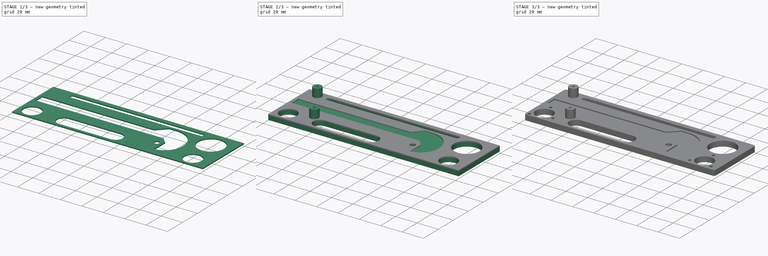
[diagram: build sequence overview — one tinted view per stage of 3, left to right]
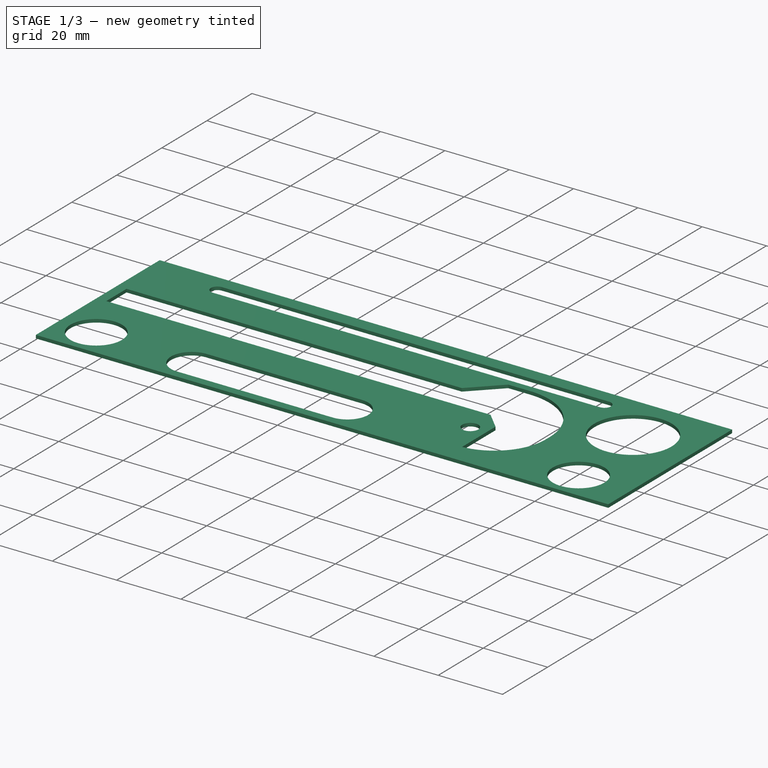
[diagram: stage 1 of 3 — iso view after this stage's code; geometry added in this stage tinted green]
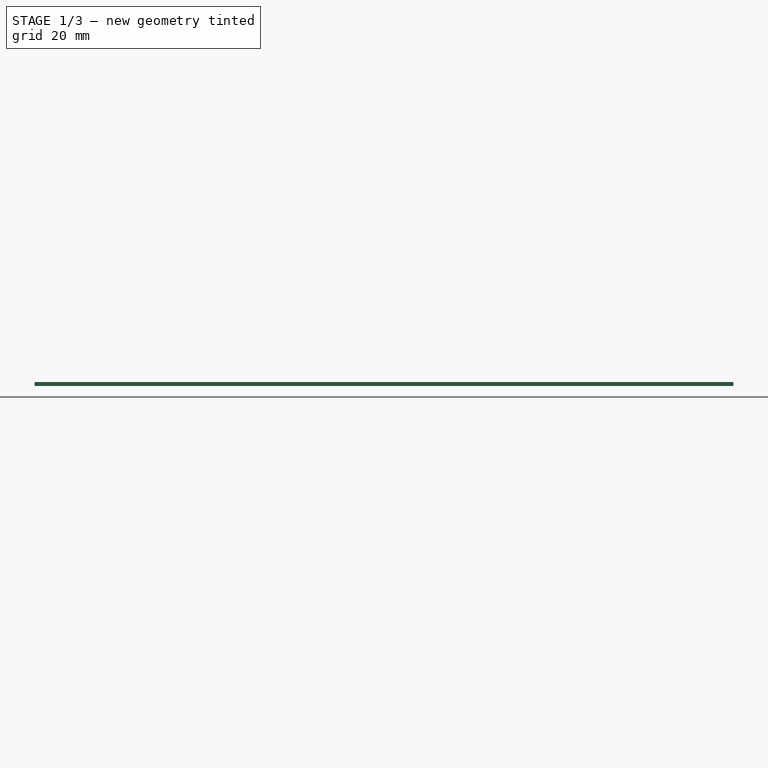
[diagram: stage 1 of 3 — front view after this stage's code; geometry added in this stage tinted green]
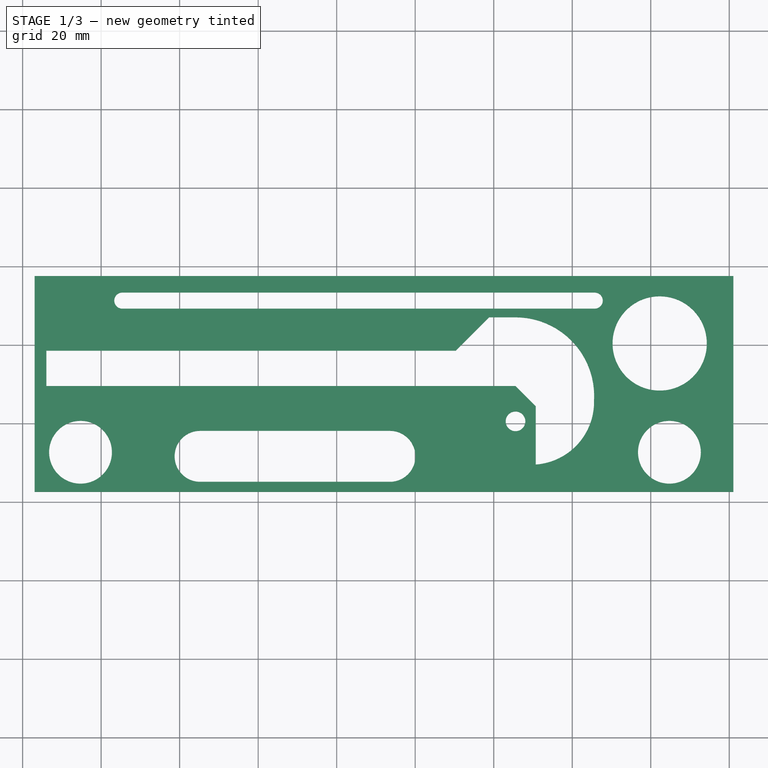
[diagram: stage 1 of 3 — top view after this stage's code; geometry added in this stage tinted green]
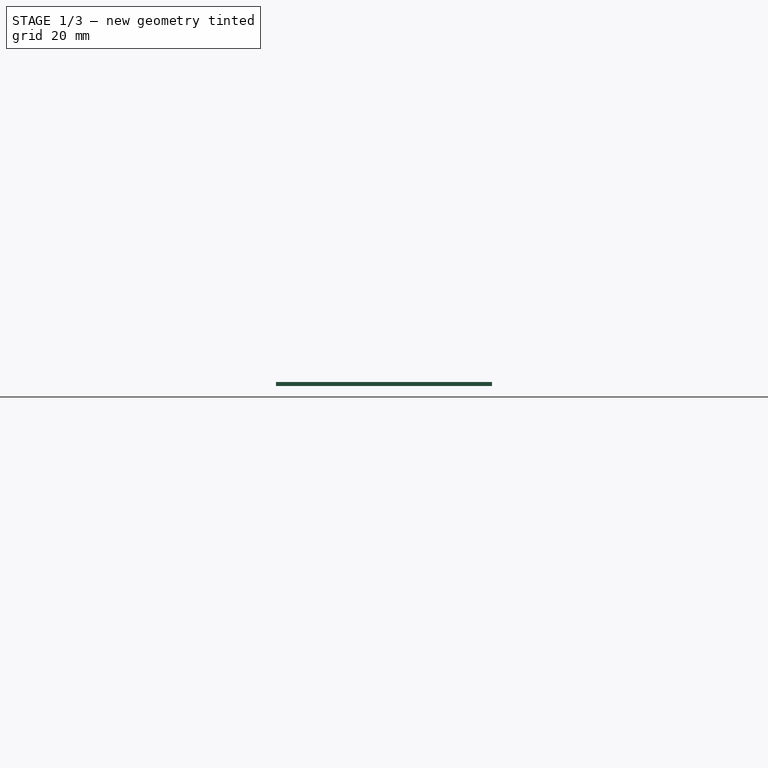
[diagram: stage 1 of 3 — right view after this stage's code; geometry added in this stage tinted green]
FCSTD DOCUMENT  (FreeCAD 0.19R24276 (Git))
Label: Paper_knife_V3
License: All rights reserved
LicenseURL: http://en.wikipedia.org/wiki/All_rights_reserved
objects: Sketcher::SketchObject×6, PartDesign::Pad×3, PartDesign::Pocket×3, PartDesign::Fillet×1, PartDesign::Body×1
note: 21 computed .brp shape members not serialized (recipe doc carries the construction recipe); baked Part::Feature solids carry a one-line shape summary decoded from their .brp

FEATURE [Sketcher::SketchObject] Sketch001  label="Sketch_paper_knife_bottom"
  FullyConstrained = false
  MapMode = 5
  Support = -> [XY_Plane]
  sketch-geometry (63):
    g0: LineSegment StartX=-234.473 StartY=320.288 StartZ=0 EndX=-134.473 EndY=320.288 EndZ=0
    g1: LineSegment StartX=-224.473 StartY=338.288 StartZ=0 EndX=-124.473 EndY=338.288 EndZ=0
    g2: LineSegment StartX=-134.473 StartY=320.288 StartZ=0 EndX=-124.473 EndY=338.288 EndZ=0
    g3: LineSegment StartX=-234.473 StartY=320.288 StartZ=0 EndX=-224.473 EndY=338.288 EndZ=0
    g4: Circle CenterX=-140.473 CenterY=329.288 CenterZ=0 NormalX=0 NormalY=0 NormalZ=1 AngleXU=0 Radius=2.3784
    g5: LineSegment StartX=-233.473 StartY=322.088 StartZ=0 EndX=-133.473 EndY=322.088 EndZ=0
    g6: Circle CenterX=5.54995 CenterY=200.561 CenterZ=0 NormalX=0 NormalY=0 NormalZ=1 AngleXU=0 Radius=2.5
    g7: ArcOfCircle CenterX=9.55773 CenterY=205.53 CenterZ=0 NormalX=0 NormalY=0 NormalZ=1 AngleXU=0 Radius=16 StartAngle=4.23032 EndAngle=6.31437
    g8: ArcOfCircle CenterX=-92.45 CenterY=207.352 CenterZ=0 NormalX=0 NormalY=0 NormalZ=1 AngleXU=0 Radius=8 StartAngle=3.86433 EndAngle=5.56045
    g9: LineSegment StartX=-124.45 StartY=213.061 StartZ=0 EndX=-116.95 EndY=227.061 EndZ=0
    g10: LineSegment StartX=-124.45 StartY=213.061 StartZ=0 EndX=-120.45 EndY=202.061 EndZ=0
    g11: ArcOfCircle CenterX=-39.4857 CenterY=116.98 CenterZ=0 NormalX=0 NormalY=0 NormalZ=1 AngleXU=0 Radius=85.2296 StartAngle=1.06055 EndAngle=1.51168
    g12: LineSegment StartX=-34.45 StartY=202.061 StartZ=0 EndX=-86.45 EndY=202.061 EndZ=0
    g13: LineSegment StartX=-98.45 StartY=202.061 StartZ=0 EndX=-120.45 EndY=202.061 EndZ=0
    g14: ArcOfCircle CenterX=-113.45 CenterY=213.061 CenterZ=0 NormalX=0 NormalY=0 NormalZ=1 AngleXU=0 Radius=2.5 StartAngle=1.5708 EndAngle=4.71239
    g15: ArcOfCircle CenterX=-23.45 CenterY=213.061 CenterZ=0 NormalX=0 NormalY=0 NormalZ=1 AngleXU=0 Radius=2.5 StartAngle=4.71239 EndAngle=7.85398
    g16: LineSegment StartX=-113.45 StartY=210.561 StartZ=0 EndX=-23.45 EndY=210.561 EndZ=0
    g17: LineSegment StartX=-113.45 StartY=215.561 StartZ=0 EndX=-23.45 EndY=215.561 EndZ=0
    g18: LineSegment StartX=-27.3628 StartY=293.719 StartZ=0 EndX=-27.3628 EndY=353.575 EndZ=0
    g19: LineSegment StartX=-207.45 StartY=204.061 StartZ=0 EndX=-107.45 EndY=204.061 EndZ=0
    g20: LineSegment StartX=-197.45 StartY=222.061 StartZ=0 EndX=-97.45 EndY=222.061 EndZ=0
    g21: LineSegment StartX=-107.45 StartY=204.061 StartZ=0 EndX=-97.45 EndY=222.061 EndZ=0
    g22: LineSegment StartX=-207.45 StartY=204.061 StartZ=0 EndX=-197.45 EndY=222.061 EndZ=0
    g23: Circle CenterX=-113.45 CenterY=213.061 CenterZ=0 NormalX=0 NormalY=0 NormalZ=1 AngleXU=0 Radius=2.3784
    g24: LineSegment StartX=-206.45 StartY=205.861 StartZ=0 EndX=-106.45 EndY=205.861 EndZ=0
    g25: LineSegment StartX=-98.45 StartY=202.061 StartZ=0 EndX=-86.45 EndY=202.061 EndZ=0
    g26: ArcOfCircle CenterX=5.54995 CenterY=207.036 CenterZ=0 NormalX=0 NormalY=0 NormalZ=1 AngleXU=0 Radius=20.0253 StartAngle=6.2329 EndAngle=7.85398
    g27: LineSegment StartX=5.54995 StartY=227.061 StartZ=0 EndX=-116.95 EndY=227.061 EndZ=0
    g28: LineSegment StartX=5.54995 StartY=200.561 StartZ=0 EndX=5.54995 EndY=227.061 EndZ=0
    g29: LineSegment StartX=5.54995 StartY=200.561 StartZ=0 EndX=5.54995 EndY=189.561 EndZ=0
    g30: LineSegment StartX=5.54995 StartY=200.561 StartZ=0 EndX=10.55 EndY=189.561 EndZ=0
    g31: LineSegment StartX=10.55 StartY=189.561 StartZ=0 EndX=5.54995 EndY=189.561 EndZ=0
    g32: LineSegment StartX=-123.177 StartY=209.561 StartZ=0 EndX=-9.61802 EndY=209.561 EndZ=0
    g33: LineSegment StartX=-121.504 StartY=218.561 StartZ=0 EndX=-9.69446 EndY=218.561 EndZ=0
    g34: LineSegment StartX=-9.69446 StartY=227.061 StartZ=0 EndX=-9.69446 EndY=218.561 EndZ=0
    g35: LineSegment StartX=-116.95 StartY=237.584 StartZ=0 EndX=61.05 EndY=237.584 EndZ=0
    g36: LineSegment StartX=61.05 StartY=237.584 StartZ=0 EndX=61.05 EndY=182.584 EndZ=0
    g37: LineSegment StartX=61.05 StartY=182.584 StartZ=0 EndX=-116.95 EndY=182.584 EndZ=0
    g38: LineSegment StartX=-116.95 StartY=182.584 StartZ=0 EndX=-116.95 EndY=237.584 EndZ=0
    g39: LineSegment StartX=-105.249 StartY=192.692 StartZ=0 EndX=44.7508 EndY=192.692 EndZ=0
    g40: Circle CenterX=-105.249 CenterY=192.692 CenterZ=0 NormalX=0 NormalY=0 NormalZ=1 AngleXU=0 Radius=8
    g41: Circle CenterX=44.7508 CenterY=192.692 CenterZ=0 NormalX=0 NormalY=0 NormalZ=1 AngleXU=0 Radius=8
    g42: LineSegment StartX=-9.69446 StartY=227.061 StartZ=0 EndX=5.54995 EndY=227.061 EndZ=0
    g43: LineSegment StartX=-9.69446 StartY=227.061 StartZ=0 EndX=5.54995 EndY=227.061 EndZ=0
    g44: LineSegment StartX=-113.95 StartY=218.561 StartZ=0 EndX=-9.69446 EndY=218.561 EndZ=0
    g45: LineSegment StartX=-113.95 StartY=209.561 StartZ=0 EndX=-9.61802 EndY=209.561 EndZ=0
    g46: LineSegment StartX=5.54995 StartY=200.561 StartZ=0 EndX=5.54995 EndY=207.036 EndZ=0
    g47: LineSegment StartX=-9.61802 StartY=209.561 StartZ=0 EndX=5.54995 EndY=209.561 EndZ=0
    g48: LineSegment StartX=5.54995 StartY=209.561 StartZ=0 EndX=10.6979 EndY=204.413 EndZ=0
    g49: ArcOfCircle CenterX=9.56276 CenterY=205.516 CenterZ=0 NormalX=0 NormalY=0 NormalZ=1 AngleXU=0 Radius=15.9954 StartAngle=4.78341 EndAngle=6.31527
    g50: LineSegment StartX=-9.69446 StartY=218.561 StartZ=0 EndX=-1.19441 EndY=227.061 EndZ=0
    g51: LineSegment StartX=-1.19441 StartY=227.061 StartZ=0 EndX=5.54995 EndY=227.061 EndZ=0
    g52: LineSegment StartX=-113.95 StartY=218.561 StartZ=0 EndX=-113.95 EndY=209.561 EndZ=0
    g53: LineSegment StartX=10.6979 StartY=189.561 StartZ=0 EndX=10.6979 EndY=204.413 EndZ=0
    g54: ArcOfCircle CenterX=-74.7934 CenterY=191.651 CenterZ=0 NormalX=0 NormalY=0 NormalZ=1 AngleXU=0 Radius=6.48941 StartAngle=1.5708 EndAngle=4.71239
    g55: ArcOfCircle CenterX=-26.4409 CenterY=191.651 CenterZ=0 NormalX=0 NormalY=0 NormalZ=1 AngleXU=0 Radius=6.48941 StartAngle=4.71239 EndAngle=7.85398
    g56: LineSegment StartX=-74.7934 StartY=185.161 StartZ=0 EndX=-26.4409 EndY=185.161 EndZ=0
    g57: LineSegment StartX=-74.7934 StartY=198.14 StartZ=0 EndX=-26.4409 EndY=198.14 EndZ=0
    g58: Circle CenterX=42.2705 CenterY=220.408 CenterZ=0 NormalX=0 NormalY=0 NormalZ=1 AngleXU=0 Radius=12.0041
    g59: ArcOfCircle CenterX=-94.6128 CenterY=231.321 CenterZ=0 NormalX=0 NormalY=0 NormalZ=1 AngleXU=0 Radius=2.04328 StartAngle=1.5708 EndAngle=4.71239
    g60: ArcOfCircle CenterX=25.7289 CenterY=231.321 CenterZ=0 NormalX=0 NormalY=0 NormalZ=1 AngleXU=0 Radius=2.04328 StartAngle=4.71239 EndAngle=7.85398
    g61: LineSegment StartX=-94.6128 StartY=229.278 StartZ=0 EndX=25.7289 EndY=229.278 EndZ=0
    g62: LineSegment StartX=-94.6128 StartY=233.364 StartZ=0 EndX=25.7289 EndY=233.364 EndZ=0
  constraints (152):
    c: Horizontal(g0)
    c: Horizontal(g1)
    c: Coincident(g2,g0)
    c: Coincident(g2,g1)
    c: Coincident(g3,g0)
    c: Coincident(g1,g3)
    c: Parallel(g3,g2)
    c: DistanceY(g0,g1) = 18
    c: DistanceX(g0,g0) = 100
    c: DistanceX(g0,g1) = 110
    c: DistanceX(g4,g0) = 6
    c: DistanceY(g0,g4) = 9
    c: PointOnObject(g5,g3)
    c: PointOnObject(g5,g2)
    c: Horizontal(g5)
    c: DistanceY(g0,g5) = 1.8
    c: Diameter(g6) = 5
    c: DistanceX(g8,g6) = 98
    c: Diameter(g8) = 16
    c: DistanceX(g8,g8) = 12
    c: Coincident(g10,g9)
    c: DistanceX(g10,g6) = 126
    c: DistanceY(g10,g9) = 11
    c: DistanceY(g10,g9) = 25
    c: DistanceX(g11,g6) = 40
    c: Coincident(g7,g11)
    c: Coincident(g12,g11)
    c: Coincident(g12,g8)
    c: Horizontal(g12)
    c: Coincident(g13,g8)
    c: Coincident(g13,g10)
    c: Horizontal(g13)
    c: DistanceX(g9,g10) = 4
    c: DistanceX(g9,g9) = 7.5
    c: Diameter(g7) = 32
    c: DistanceX(g6,g7) = 20
    c: Tangent(g14,g17) = 1.5708
    c: Tangent(g14,g16) = -1.5708
    c: Tangent(g16,g15) = -1.5708
    c: Tangent(g17,g15) = 1.5708
    c: Horizontal(g16)
    c: Equal(g14,g15)
    c: Diameter(g15) = 5
    c: Vertical(g18)
    c: Horizontal(g19)
    c: Horizontal(g20)
    c: Coincident(g21,g19)
    c: Coincident(g21,g20)
    c: Coincident(g22,g19)
    c: Coincident(g20,g22)
    c: Parallel(g22,g21)
    c: DistanceY(g19,g20) = 18
    c: Equal(g0,g19) = 100
    c: DistanceX(g19,g20) = 110
    c: DistanceX(g23,g19) = 6
    c: DistanceY(g19,g23) = 9
    c: PointOnObject(g24,g22)
    c: PointOnObject(g24,g21)
    c: Horizontal(g24)
    c: DistanceY(g19,g24) = 1.8
    c: DistanceY(g10,g14) = 11
    c: Coincident(g23,g14)
    c: DistanceX(g10,g14) = 7
    c: DistanceX(g10,g15) = 97
    c: DistanceX(g7,g6) = 3.41
    c: DistanceY(g6,g11) = 1.5
    c: Coincident(g25,g8)
    c: Horizontal(g25)
    c: Coincident(g8,g25)
    c: Coincident(g26,g7)
    c: Coincident(g27,g26)
    c: Coincident(g27,g9)
    c: Horizontal(g27)
    c: Coincident(g28,g6)
    c: Coincident(g28,g26)
    c: Vertical(g28)
    c: Coincident(g29,g6)
    c: Vertical(g29)
    c: DistanceY(g29,g29) = 11
    c: Coincident(g30,g6)
    c: PointOnObject(g30,g7)
    c: Coincident(g31,g30)
    c: Coincident(g31,g29)
    c: Horizontal(g31)
    c: DistanceX(g6,g30) = 5
    c: Horizontal(g32)
    c: Horizontal(g33)
    c: Vertical(g34)
    c: DistanceY(g11,g32) = 7.5
    c: DistanceY(g11,g33) = 16.5
    c: Coincident(g34,g33)
    c: PointOnObject(g34,g27)
    c: PointOnObject(g33,g9)
    c: PointOnObject(g32,g10)
    c: Coincident(g35,g36)
    c: Coincident(g36,g37)
    c: Coincident(g37,g38)
    c: Coincident(g38,g35)
    c: Horizontal(g35)
    c: Horizontal(g37)
    c: Vertical(g36)
    c: Vertical(g38)
    c: Horizontal(g39)
    c: Coincident(g40,g39)
    c: Coincident(g41,g39)
    c: Equal(g41,g40)
    c: Diameter(g41) = 16
    c: DistanceX(g39,g39) = 150
    c: Vertical(g9,g35)
    c: DistanceX(g37,g37) = 178
    c: DistanceY(g36,g36) = 55
    c: Coincident(g43,g34)
    c: Coincident(g26,g43)
    c: Coincident(g42,g26)
    c: Coincident(g34,g42)
    c: Coincident(g44,g34)
    c: Coincident(g46,g6)
    c: Coincident(g46,g26)
    c: Vertical(g46)
    c: Horizontal(g47)
    c: Coincident(g48,g47)
    c: Vertical(g6,g47)
    c: Angle(g47,g48) = 2.35619
    c: Coincident(g49,g26)
    c: PointOnObject(g49,g31)
    c: Coincident(g50,g34)
    c: PointOnObject(g50,g43)
    c: Angle(g50,g44) = 2.35619
    c: Coincident(g51,g50)
    c: Vertical(g52)
    c: Coincident(g45,g52)
    c: Coincident(g52,g44)
    c: Horizontal(g32,g45)
    c: DistanceX(g9,g44) = 3
    c: Coincident(g53,g49)
    c: Coincident(g53,g48)
    c: Vertical(g53)
    c: Coincident(g51,g26)
    c: Tangent(g54,g57) = 1.5708
    c: Tangent(g54,g56) = -1.5708
    c: Tangent(g56,g55) = -1.5708
    c: Tangent(g57,g55) = 1.5708
    c: Horizontal(g56)
    c: Equal(g54,g55)
    c: Tangent(g59,g62) = 1.5708
    c: Tangent(g59,g61) = -1.5708
    c: Tangent(g61,g60) = -1.5708
    c: Tangent(g62,g60) = 1.5708
    c: Horizontal(g61)
    c: Equal(g59,g60)
    c: Horizontal(g45)
    c: Coincident(g47,g45)
FEATURE [PartDesign::Pad] Pad  label="Pad_1.0"
  Direction = (1,1,1)
  Length = 1
  Length2 = 100
  Profile = -> Sketch001
  Type = 0
FEATURE [Sketcher::SketchObject] Sketch003  label="Sketch003_d8_2stolba"
  FullyConstrained = false
  MapMode = 5
  Placement = pos=(0,0,1) rot=(0,0,1;0rad)
  Support = -> [Pad]
  sketch-geometry (6):
    g0: Circle CenterX=-84.9433 CenterY=197.501 CenterZ=0 NormalX=0 NormalY=0 NormalZ=1 AngleXU=0 Radius=4
    g1: Circle CenterX=-104.954 CenterY=231.542 CenterZ=0 NormalX=0 NormalY=0 NormalZ=1 AngleXU=0 Radius=4
    g2: LineSegment StartX=-84.9433 StartY=197.501 StartZ=0 EndX=-84.9433 EndY=198.501 EndZ=0
    g3: Circle CenterX=-84.9433 CenterY=198.501 CenterZ=0 NormalX=0 NormalY=0 NormalZ=1 AngleXU=0 Radius=4
    g4: LineSegment StartX=-104.954 StartY=231.542 StartZ=0 EndX=-104.954 EndY=231.042 EndZ=0
    g5: Circle CenterX=-104.954 CenterY=231.042 CenterZ=0 NormalX=0 NormalY=0 NormalZ=1 AngleXU=0 Radius=4
  constraints (12):
    c: Diameter(g0) = 8
    c: Equal(g0,g1)
    c: Coincident(g2,g0)
    c: Vertical(g2)
    c: DistanceY(g2,g2) = 1
    c: Coincident(g3,g2)
    c: Diameter(g3) = 8
    c: Coincident(g4,g1)
    c: Vertical(g4)
    c: DistanceY(g4,g4) = 0.5
    c: Coincident(g5,g4)
    c: Equal(g5,g1)
FEATURE [Sketcher::SketchObject] Sketch004
  FullyConstrained = false
  MapMode = 5
  Placement = pos=(0,0,10) rot=(0,0,1;0rad)
  sketch-geometry (2):
    g0: Circle CenterX=-84.9178 CenterY=197.526 CenterZ=0 NormalX=0 NormalY=0 NormalZ=1 AngleXU=0 Radius=1.3
    g1: Circle CenterX=-104.937 CenterY=231.506 CenterZ=0 NormalX=0 NormalY=0 NormalZ=1 AngleXU=0 Radius=1.3
  constraints (2):
    c: Diameter(g0) = 2.6
    c: Diameter(g1) = 2.6
FEATURE [PartDesign::Pocket] Pocket
  BaseFeature = -> Pad
  Length = 9
  Length2 = 100
  Profile = -> Sketch004
  Type = 0
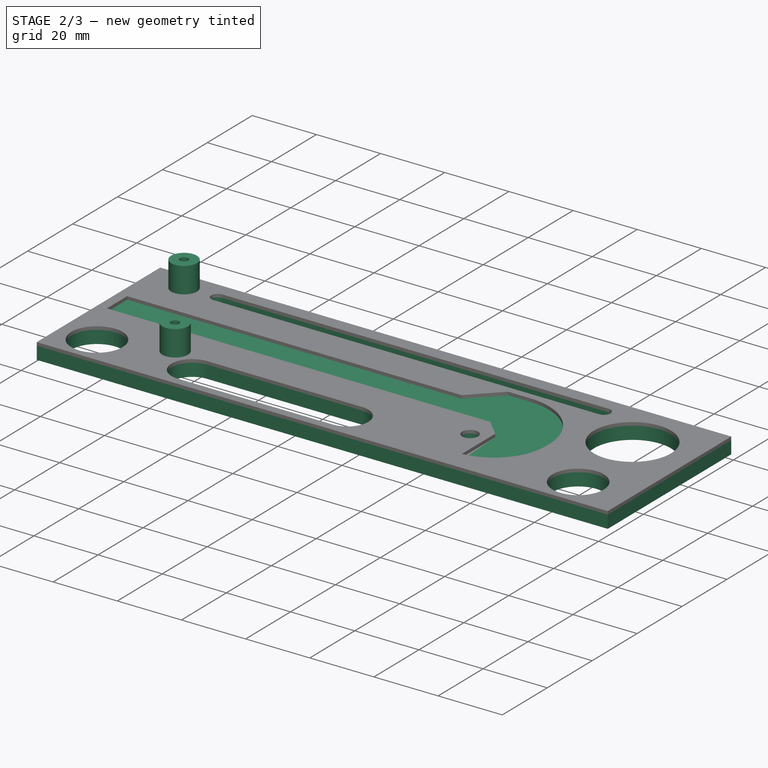
[diagram: stage 2 of 3 — iso view after this stage's code; geometry added in this stage tinted green]
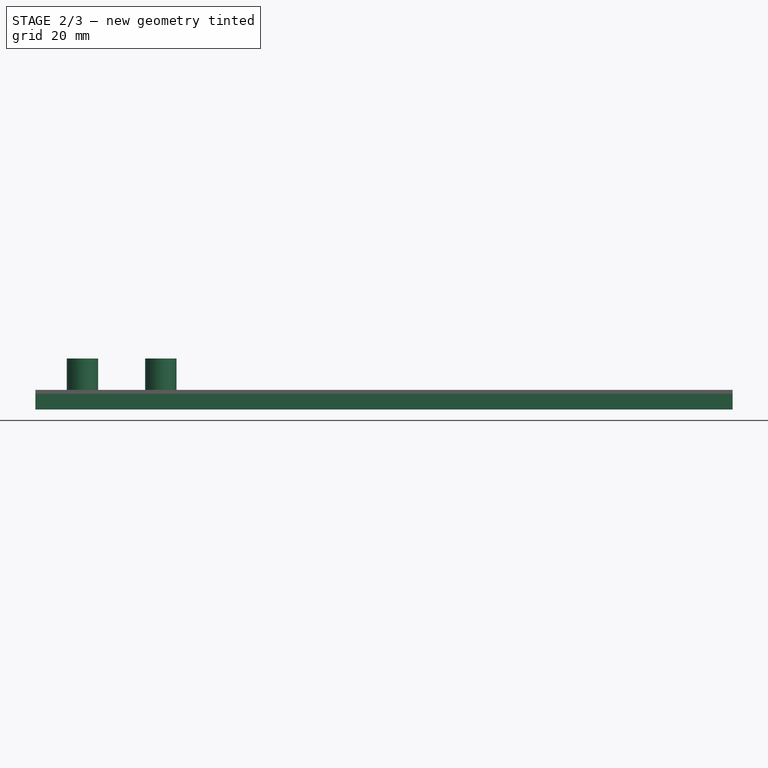
[diagram: stage 2 of 3 — front view after this stage's code; geometry added in this stage tinted green]
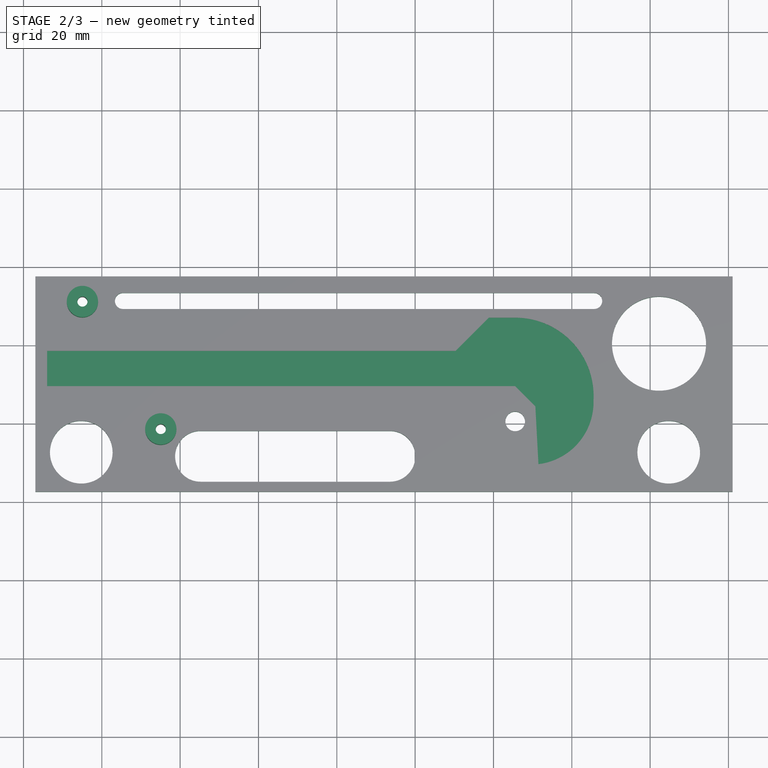
[diagram: stage 2 of 3 — top view after this stage's code; geometry added in this stage tinted green]
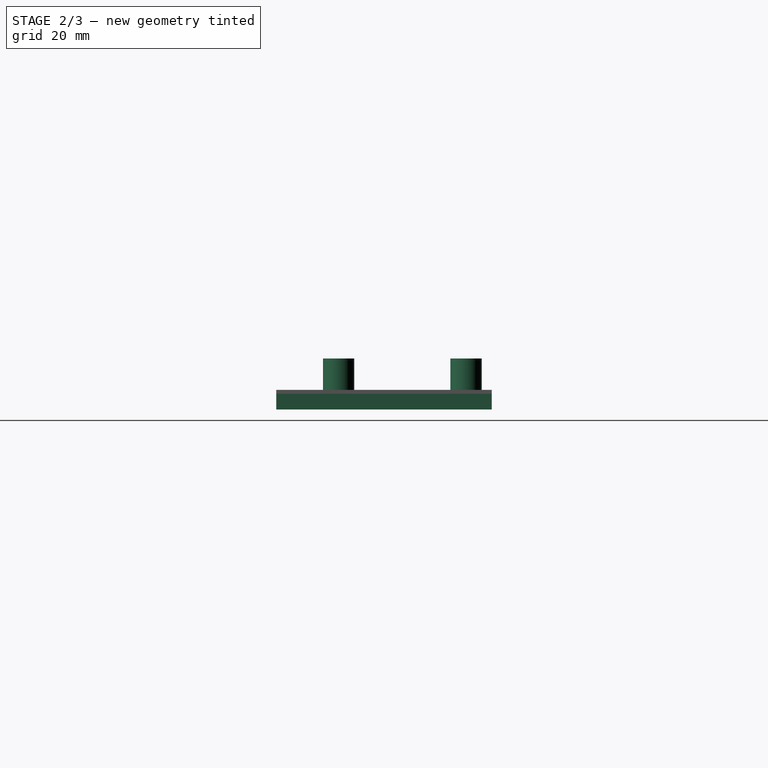
[diagram: stage 2 of 3 — right view after this stage's code; geometry added in this stage tinted green]
FEATURE [PartDesign::Pad] Pad001  label="Pad001_h8"
  BaseFeature = -> Pocket
  Direction = (1,1,1)
  Length = 8
  Length2 = 100
  Profile = -> Sketch003
  Type = 0
FEATURE [Sketcher::SketchObject] Sketch006  label="Sketch_paper_knife_bottom001"
  FullyConstrained = false
  MapMode = 5
  Support = -> [XY_Plane]
  sketch-geometry (63):
    g0: LineSegment StartX=-234.473 StartY=320.288 StartZ=0 EndX=-134.473 EndY=320.288 EndZ=0
    g1: LineSegment StartX=-224.473 StartY=338.288 StartZ=0 EndX=-124.473 EndY=338.288 EndZ=0
    g2: LineSegment StartX=-134.473 StartY=320.288 StartZ=0 EndX=-124.473 EndY=338.288 EndZ=0
    g3: LineSegment StartX=-234.473 StartY=320.288 StartZ=0 EndX=-224.473 EndY=338.288 EndZ=0
    g4: Circle CenterX=-140.473 CenterY=329.288 CenterZ=0 NormalX=0 NormalY=0 NormalZ=1 AngleXU=0 Radius=2.3784
    g5: LineSegment StartX=-233.473 StartY=322.088 StartZ=0 EndX=-133.473 EndY=322.088 EndZ=0
    g6: Circle CenterX=5.54995 CenterY=200.561 CenterZ=0 NormalX=0 NormalY=0 NormalZ=1 AngleXU=0 Radius=2.5
    g7: ArcOfCircle CenterX=9.55773 CenterY=205.53 CenterZ=0 NormalX=0 NormalY=0 NormalZ=1 AngleXU=0 Radius=16 StartAngle=4.23032 EndAngle=6.31437
    g8: ArcOfCircle CenterX=-92.45 CenterY=207.352 CenterZ=0 NormalX=0 NormalY=0 NormalZ=1 AngleXU=0 Radius=8 StartAngle=3.86433 EndAngle=5.56045
    g9: LineSegment StartX=-124.45 StartY=213.061 StartZ=0 EndX=-116.95 EndY=227.061 EndZ=0
    g10: LineSegment StartX=-124.45 StartY=213.061 StartZ=0 EndX=-120.45 EndY=202.061 EndZ=0
    g11: ArcOfCircle CenterX=-39.4857 CenterY=116.98 CenterZ=0 NormalX=0 NormalY=0 NormalZ=1 AngleXU=0 Radius=85.2296 StartAngle=1.06055 EndAngle=1.51168
    g12: LineSegment StartX=-34.45 StartY=202.061 StartZ=0 EndX=-86.45 EndY=202.061 EndZ=0
    g13: LineSegment StartX=-98.45 StartY=202.061 StartZ=0 EndX=-120.45 EndY=202.061 EndZ=0
    g14: ArcOfCircle CenterX=-113.45 CenterY=213.061 CenterZ=0 NormalX=0 NormalY=0 NormalZ=1 AngleXU=0 Radius=2.5 StartAngle=1.5708 EndAngle=4.71239
    g15: ArcOfCircle CenterX=-23.45 CenterY=213.061 CenterZ=0 NormalX=0 NormalY=0 NormalZ=1 AngleXU=0 Radius=2.5 StartAngle=4.71239 EndAngle=7.85398
    g16: LineSegment StartX=-113.45 StartY=210.561 StartZ=0 EndX=-23.45 EndY=210.561 EndZ=0
    g17: LineSegment StartX=-113.45 StartY=215.561 StartZ=0 EndX=-23.45 EndY=215.561 EndZ=0
    g18: LineSegment StartX=-27.3628 StartY=293.719 StartZ=0 EndX=-27.3628 EndY=353.575 EndZ=0
    g19: LineSegment StartX=-207.45 StartY=204.061 StartZ=0 EndX=-107.45 EndY=204.061 EndZ=0
    g20: LineSegment StartX=-197.45 StartY=222.061 StartZ=0 EndX=-97.45 EndY=222.061 EndZ=0
    g21: LineSegment StartX=-107.45 StartY=204.061 StartZ=0 EndX=-97.45 EndY=222.061 EndZ=0
    g22: LineSegment StartX=-207.45 StartY=204.061 StartZ=0 EndX=-197.45 EndY=222.061 EndZ=0
    g23: Circle CenterX=-113.45 CenterY=213.061 CenterZ=0 NormalX=0 NormalY=0 NormalZ=1 AngleXU=0 Radius=2.3784
    g24: LineSegment StartX=-206.45 StartY=205.861 StartZ=0 EndX=-106.45 EndY=205.861 EndZ=0
    g25: LineSegment StartX=-98.45 StartY=202.061 StartZ=0 EndX=-86.45 EndY=202.061 EndZ=0
    g26: ArcOfCircle CenterX=5.54995 CenterY=207.036 CenterZ=0 NormalX=0 NormalY=0 NormalZ=1 AngleXU=0 Radius=20.0253 StartAngle=6.2329 EndAngle=7.85398
    g27: LineSegment StartX=5.54995 StartY=227.061 StartZ=0 EndX=-116.95 EndY=227.061 EndZ=0
    g28: LineSegment StartX=5.54995 StartY=200.561 StartZ=0 EndX=5.54995 EndY=227.061 EndZ=0
    g29: LineSegment StartX=5.54995 StartY=200.561 StartZ=0 EndX=5.54995 EndY=189.561 EndZ=0
    g30: LineSegment StartX=5.54995 StartY=200.561 StartZ=0 EndX=10.55 EndY=189.561 EndZ=0
    g31: LineSegment StartX=10.55 StartY=189.561 StartZ=0 EndX=5.54995 EndY=189.561 EndZ=0
    g32: LineSegment StartX=-123.177 StartY=209.561 StartZ=0 EndX=-9.61802 EndY=209.561 EndZ=0
    g33: LineSegment StartX=-121.504 StartY=218.561 StartZ=0 EndX=-9.69446 EndY=218.561 EndZ=0
    g34: LineSegment StartX=-9.69446 StartY=227.061 StartZ=0 EndX=-9.69446 EndY=218.561 EndZ=0
    g35: LineSegment StartX=-116.95 StartY=237.584 StartZ=0 EndX=61.05 EndY=237.584 EndZ=0
    g36: LineSegment StartX=61.05 StartY=237.584 StartZ=0 EndX=61.05 EndY=182.584 EndZ=0
    g37: LineSegment StartX=61.05 StartY=182.584 StartZ=0 EndX=-116.95 EndY=182.584 EndZ=0
    g38: LineSegment StartX=-116.95 StartY=182.584 StartZ=0 EndX=-116.95 EndY=237.584 EndZ=0
    g39: LineSegment StartX=-105.249 StartY=192.692 StartZ=0 EndX=44.7508 EndY=192.692 EndZ=0
    g40: Circle CenterX=-105.249 CenterY=192.692 CenterZ=0 NormalX=0 NormalY=0 NormalZ=1 AngleXU=0 Radius=8
    g41: Circle CenterX=44.7508 CenterY=192.692 CenterZ=0 NormalX=0 NormalY=0 NormalZ=1 AngleXU=0 Radius=8
    g42: LineSegment StartX=-9.69446 StartY=227.061 StartZ=0 EndX=5.54995 EndY=227.061 EndZ=0
    g43: LineSegment StartX=-9.69446 StartY=227.061 StartZ=0 EndX=5.54995 EndY=227.061 EndZ=0
    g44: LineSegment StartX=-113.95 StartY=218.561 StartZ=0 EndX=-9.69446 EndY=218.561 EndZ=0
    g45: LineSegment StartX=-113.95 StartY=209.561 StartZ=0 EndX=-9.61802 EndY=209.561 EndZ=0
    g46: LineSegment StartX=5.54995 StartY=200.561 StartZ=0 EndX=5.54995 EndY=207.036 EndZ=0
    g47: LineSegment StartX=-9.61802 StartY=209.561 StartZ=0 EndX=5.54995 EndY=209.561 EndZ=0
    g48: LineSegment StartX=5.54995 StartY=209.561 StartZ=0 EndX=10.6979 EndY=204.413 EndZ=0
    g49: ArcOfCircle CenterX=9.56276 CenterY=205.516 CenterZ=0 NormalX=0 NormalY=0 NormalZ=1 AngleXU=0 Radius=15.9954 StartAngle=4.78341 EndAngle=6.31527
    g50: LineSegment StartX=-9.69446 StartY=218.561 StartZ=0 EndX=-1.19441 EndY=227.061 EndZ=0
    g51: LineSegment StartX=-1.19441 StartY=227.061 StartZ=0 EndX=5.54995 EndY=227.061 EndZ=0
    g52: LineSegment StartX=-113.95 StartY=218.561 StartZ=0 EndX=-113.95 EndY=209.561 EndZ=0
    g53: LineSegment StartX=10.6979 StartY=189.561 StartZ=0 EndX=10.6979 EndY=204.413 EndZ=0
    g54: ArcOfCircle CenterX=-74.7934 CenterY=191.651 CenterZ=0 NormalX=0 NormalY=0 NormalZ=1 AngleXU=0 Radius=6.48941 StartAngle=1.5708 EndAngle=4.71239
    g55: ArcOfCircle CenterX=-26.4409 CenterY=191.651 CenterZ=0 NormalX=0 NormalY=0 NormalZ=1 AngleXU=0 Radius=6.48941 StartAngle=4.71239 EndAngle=7.85398
    g56: LineSegment StartX=-74.7934 StartY=185.161 StartZ=0 EndX=-26.4409 EndY=185.161 EndZ=0
    g57: LineSegment StartX=-74.7934 StartY=198.14 StartZ=0 EndX=-26.4409 EndY=198.14 EndZ=0
    g58: Circle CenterX=42.2705 CenterY=220.408 CenterZ=0 NormalX=0 NormalY=0 NormalZ=1 AngleXU=0 Radius=12.0041
    g59: ArcOfCircle CenterX=-94.6128 CenterY=231.321 CenterZ=0 NormalX=0 NormalY=0 NormalZ=1 AngleXU=0 Radius=2.04328 StartAngle=1.5708 EndAngle=4.71239
    g60: ArcOfCircle CenterX=25.7289 CenterY=231.321 CenterZ=0 NormalX=0 NormalY=0 NormalZ=1 AngleXU=0 Radius=2.04328 StartAngle=4.71239 EndAngle=7.85398
    g61: LineSegment StartX=-94.6128 StartY=229.278 StartZ=0 EndX=25.7289 EndY=229.278 EndZ=0
    g62: LineSegment StartX=-94.6128 StartY=233.364 StartZ=0 EndX=25.7289 EndY=233.364 EndZ=0
  constraints (152):
    c: Horizontal(g0)
    c: Horizontal(g1)
    c: Coincident(g2,g0)
    c: Coincident(g2,g1)
    c: Coincident(g3,g0)
    c: Coincident(g1,g3)
    c: Parallel(g3,g2)
    c: DistanceY(g0,g1) = 18
    c: DistanceX(g0,g0) = 100
    c: DistanceX(g0,g1) = 110
    c: DistanceX(g4,g0) = 6
    c: DistanceY(g0,g4) = 9
    c: PointOnObject(g5,g3)
    c: PointOnObject(g5,g2)
    c: Horizontal(g5)
    c: DistanceY(g0,g5) = 1.8
    c: Diameter(g6) = 5
    c: DistanceX(g8,g6) = 98
    c: Diameter(g8) = 16
    c: DistanceX(g8,g8) = 12
    c: Coincident(g10,g9)
    c: DistanceX(g10,g6) = 126
    c: DistanceY(g10,g9) = 11
    c: DistanceY(g10,g9) = 25
    c: DistanceX(g11,g6) = 40
    c: Coincident(g7,g11)
    c: Coincident(g12,g11)
    c: Coincident(g12,g8)
    c: Horizontal(g12)
    c: Coincident(g13,g8)
    c: Coincident(g13,g10)
    c: Horizontal(g13)
    c: DistanceX(g9,g10) = 4
    c: DistanceX(g9,g9) = 7.5
    c: Diameter(g7) = 32
    c: DistanceX(g6,g7) = 20
    c: Tangent(g14,g17) = 1.5708
    c: Tangent(g14,g16) = -1.5708
    c: Tangent(g16,g15) = -1.5708
    c: Tangent(g17,g15) = 1.5708
    c: Horizontal(g16)
    c: Equal(g14,g15)
    c: Diameter(g15) = 5
    c: Vertical(g18)
    c: Horizontal(g19)
    c: Horizontal(g20)
    c: Coincident(g21,g19)
    c: Coincident(g21,g20)
    c: Coincident(g22,g19)
    c: Coincident(g20,g22)
    c: Parallel(g22,g21)
    c: DistanceY(g19,g20) = 18
    c: Equal(g0,g19) = 100
    c: DistanceX(g19,g20) = 110
    c: DistanceX(g23,g19) = 6
    c: DistanceY(g19,g23) = 9
    c: PointOnObject(g24,g22)
    c: PointOnObject(g24,g21)
    c: Horizontal(g24)
    c: DistanceY(g19,g24) = 1.8
    c: DistanceY(g10,g14) = 11
    c: Coincident(g23,g14)
    c: DistanceX(g10,g14) = 7
    c: DistanceX(g10,g15) = 97
    c: DistanceX(g7,g6) = 3.41
    c: DistanceY(g6,g11) = 1.5
    c: Coincident(g25,g8)
    c: Horizontal(g25)
    c: Coincident(g8,g25)
    c: Coincident(g26,g7)
    c: Coincident(g27,g26)
    c: Coincident(g27,g9)
    c: Horizontal(g27)
    c: Coincident(g28,g6)
    c: Coincident(g28,g26)
    c: Vertical(g28)
    c: Coincident(g29,g6)
    c: Vertical(g29)
    c: DistanceY(g29,g29) = 11
    c: Coincident(g30,g6)
    c: PointOnObject(g30,g7)
    c: Coincident(g31,g30)
    c: Coincident(g31,g29)
    c: Horizontal(g31)
    c: DistanceX(g6,g30) = 5
    c: Horizontal(g32)
    c: Horizontal(g33)
    c: Vertical(g34)
    c: DistanceY(g11,g32) = 7.5
    c: DistanceY(g11,g33) = 16.5
    c: Coincident(g34,g33)
    c: PointOnObject(g34,g27)
    c: PointOnObject(g33,g9)
    c: PointOnObject(g32,g10)
    c: Coincident(g35,g36)
    c: Coincident(g36,g37)
    c: Coincident(g37,g38)
    c: Coincident(g38,g35)
    c: Horizontal(g35)
    c: Horizontal(g37)
    c: Vertical(g36)
    c: Vertical(g38)
    c: Horizontal(g39)
    c: Coincident(g40,g39)
    c: Coincident(g41,g39)
    c: Equal(g41,g40)
    c: Diameter(g41) = 16
    c: DistanceX(g39,g39) = 150
    c: Vertical(g9,g35)
    c: DistanceX(g37,g37) = 178
    c: DistanceY(g36,g36) = 55
    c: Coincident(g43,g34)
    c: Coincident(g26,g43)
    c: Coincident(g42,g26)
    c: Coincident(g34,g42)
    c: Coincident(g44,g34)
    c: Coincident(g46,g6)
    c: Coincident(g46,g26)
    c: Vertical(g46)
    c: Horizontal(g47)
    c: Coincident(g48,g47)
    c: Vertical(g6,g47)
    c: Angle(g47,g48) = 2.35619
    c: Coincident(g49,g26)
    c: PointOnObject(g49,g31)
    c: Coincident(g50,g34)
    c: PointOnObject(g50,g43)
    c: Angle(g50,g44) = 2.35619
    c: Coincident(g51,g50)
    c: Vertical(g52)
    c: Coincident(g45,g52)
    c: Coincident(g52,g44)
    c: Horizontal(g32,g45)
    c: DistanceX(g9,g44) = 3
    c: Coincident(g53,g49)
    c: Coincident(g53,g48)
    c: Vertical(g53)
    c: Coincident(g51,g26)
    c: Tangent(g54,g57) = 1.5708
    c: Tangent(g54,g56) = -1.5708
    c: Tangent(g56,g55) = -1.5708
    c: Tangent(g57,g55) = 1.5708
    c: Horizontal(g56)
    c: Equal(g54,g55)
    c: Tangent(g59,g62) = 1.5708
    c: Tangent(g59,g61) = -1.5708
    c: Tangent(g61,g60) = -1.5708
    c: Tangent(g62,g60) = 1.5708
    c: Horizontal(g61)
    c: Equal(g59,g60)
    c: Horizontal(g45)
    c: Coincident(g47,g45)
FEATURE [PartDesign::Pad] Pad002
  BaseFeature = -> Pad001
  Direction = (1,1,1)
  Length = 4
  Length2 = 100
  Profile = -> Sketch006
  Reversed = true
  Type = 0
FEATURE [Sketcher::SketchObject] Sketch
  FullyConstrained = false
  MapMode = 5
  Placement = pos=(0,0,9) rot=(0,0,1;0rad)
  Support = -> [Pad002]
  sketch-geometry (2):
    g0: Circle CenterX=-84.9456 CenterY=198.487 CenterZ=0 NormalX=0 NormalY=0 NormalZ=1 AngleXU=0 Radius=1.3
    g1: Circle CenterX=-104.953 CenterY=231.032 CenterZ=0 NormalX=0 NormalY=0 NormalZ=1 AngleXU=0 Radius=1.3
  constraints (2):
    c: Equal(g1,g0)
    c: Diameter(g1) = 2.6
FEATURE [PartDesign::Pocket] Pocket001
  BaseFeature = -> Pad002
  Length = 8
  Length2 = 100
  Profile = -> Sketch
  Type = 1
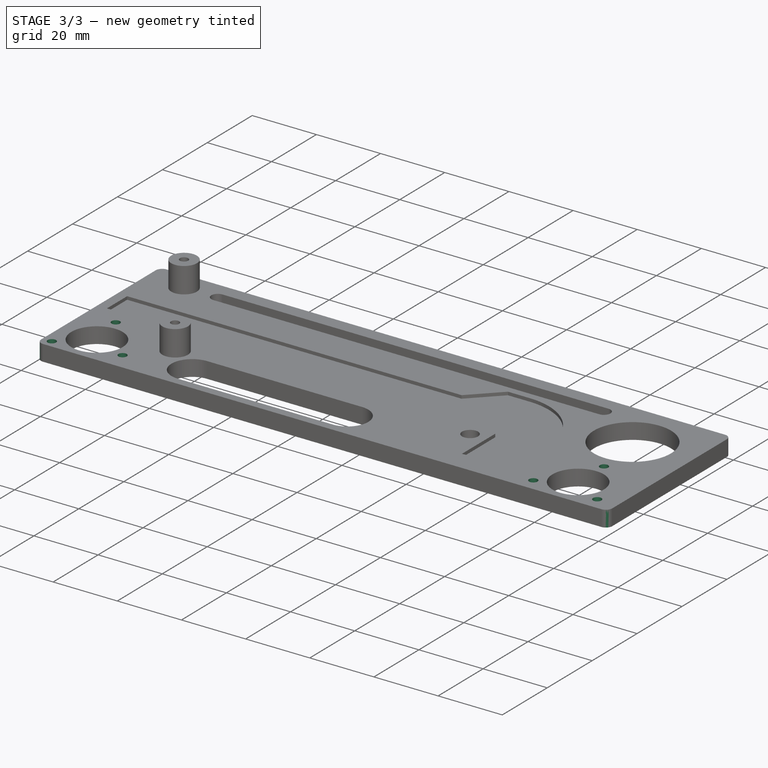
[diagram: stage 3 of 3 — iso view after this stage's code; geometry added in this stage tinted green]
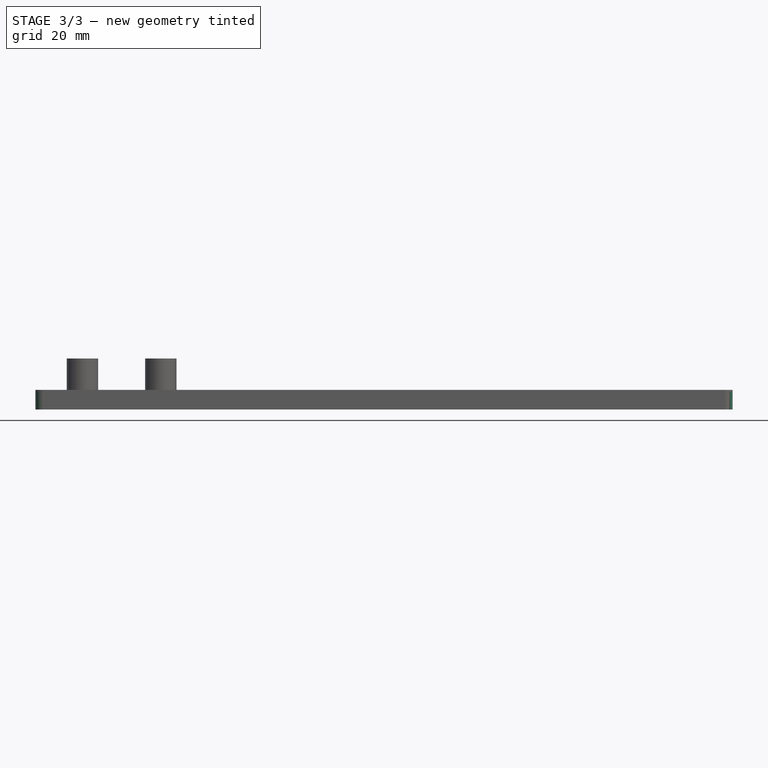
[diagram: stage 3 of 3 — front view after this stage's code; geometry added in this stage tinted green]
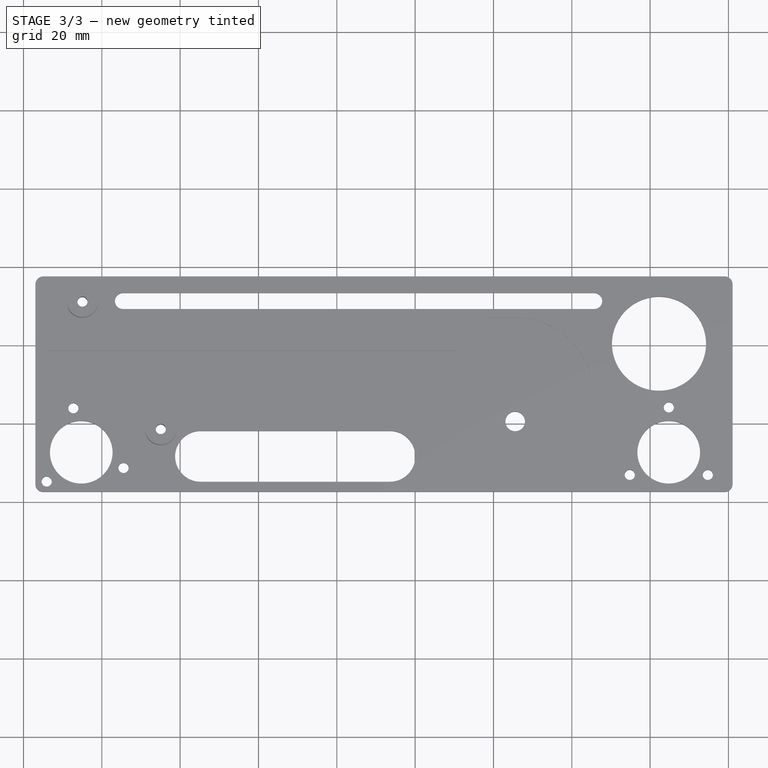
[diagram: stage 3 of 3 — top view after this stage's code; geometry added in this stage tinted green]
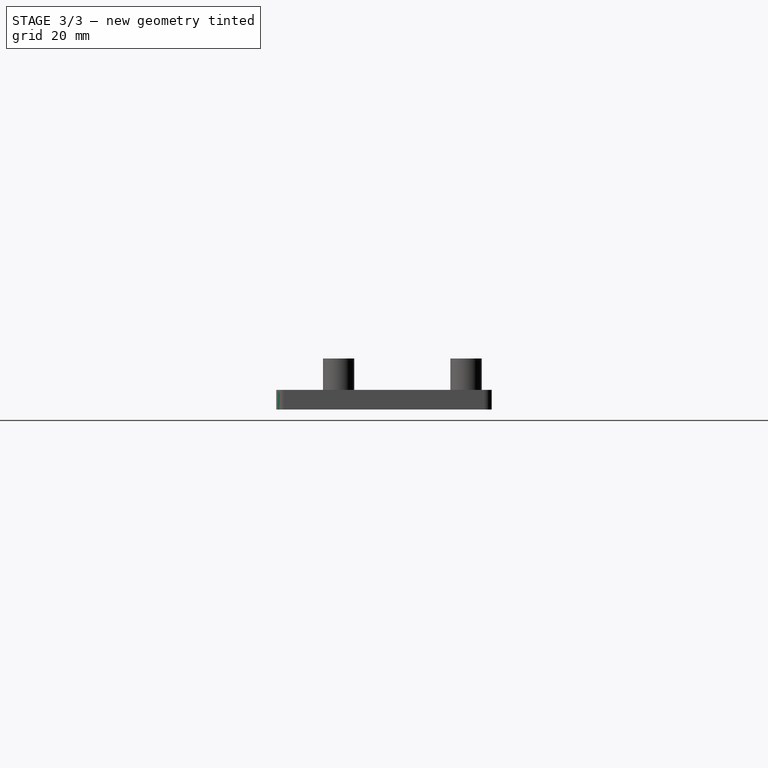
[diagram: stage 3 of 3 — right view after this stage's code; geometry added in this stage tinted green]
FEATURE [Sketcher::SketchObject] Sketch007
  FullyConstrained = false
  MapMode = 5
  Placement = pos=(0,0,1) rot=(0,0,1;0rad)
  sketch-geometry (18):
    g0: Circle CenterX=44.7742 CenterY=192.662 CenterZ=0 NormalX=0 NormalY=0 NormalZ=1 AngleXU=0 Radius=8
    g1: LineSegment StartX=44.7742 StartY=204.162 StartZ=0 EndX=34.8149 EndY=186.912 EndZ=0
    g2: LineSegment StartX=34.8149 StartY=186.912 StartZ=0 EndX=54.7335 EndY=186.912 EndZ=0
    g3: LineSegment StartX=54.7335 StartY=186.912 StartZ=0 EndX=44.7742 EndY=204.162 EndZ=0
    g4: Circle CenterX=44.7742 CenterY=192.662 CenterZ=0 NormalX=0 NormalY=0 NormalZ=1 AngleXU=0 Radius=11.5
    g5: Circle CenterX=44.7742 CenterY=204.162 CenterZ=0 NormalX=0 NormalY=0 NormalZ=1 AngleXU=0 Radius=1.3
    g6: Circle CenterX=34.8149 CenterY=186.912 CenterZ=0 NormalX=0 NormalY=0 NormalZ=1 AngleXU=0 Radius=1.3
    g7: Circle CenterX=54.7335 CenterY=186.912 CenterZ=0 NormalX=0 NormalY=0 NormalZ=1 AngleXU=0 Radius=1.3
    g8: Circle CenterX=-105.262 CenterY=192.616 CenterZ=0 NormalX=0 NormalY=0 NormalZ=1 AngleXU=0 Radius=8
    g9: LineSegment StartX=-107.259 StartY=203.942 StartZ=0 EndX=-114.072 EndY=185.224 EndZ=0
    g10: LineSegment StartX=-114.072 StartY=185.224 StartZ=0 EndX=-94.4559 EndY=188.683 EndZ=0
    g11: LineSegment StartX=-94.4559 StartY=188.683 StartZ=0 EndX=-107.259 EndY=203.942 EndZ=0
    g12: Circle CenterX=-105.262 CenterY=192.616 CenterZ=0 NormalX=0 NormalY=0 NormalZ=1 AngleXU=0 Radius=11.5
    g13: Circle CenterX=-107.259 CenterY=203.942 CenterZ=0 NormalX=0 NormalY=0 NormalZ=1 AngleXU=0 Radius=1.3
    g14: Circle CenterX=-114.072 CenterY=185.224 CenterZ=0 NormalX=0 NormalY=0 NormalZ=1 AngleXU=0 Radius=1.3
    g15: Circle CenterX=-94.4559 CenterY=188.683 CenterZ=0 NormalX=0 NormalY=0 NormalZ=1 AngleXU=0 Radius=1.3
    g16: LineSegment StartX=-114.072 StartY=185.224 StartZ=0 EndX=-105.262 EndY=192.616 EndZ=0
    g17: LineSegment StartX=-105.262 StartY=192.616 StartZ=0 EndX=-101.599 EndY=192.616 EndZ=0
  constraints (40):
    c: Diameter(g0) = 16
    c: Coincident(g1,g2)
    c: Coincident(g2,g3)
    c: Coincident(g3,g1)
    c: Equal(g1,g2)
    c: Equal(g1,g3)
    c: PointOnObject(g1,g4)
    c: PointOnObject(g2,g4)
    c: PointOnObject(g3,g4)
    c: Coincident(g4,g0)
    c: Diameter(g4) = 23
    c: Horizontal(g2)
    c: Coincident(g5,g1)
    c: Coincident(g6,g1)
    c: Coincident(g7,g2)
    c: Equal(g7,g6)
    c: Equal(g6,g5)
    c: Diameter(g5) = 2.6
    c: Equal(g0,g8) = 16
    c: Coincident(g9,g10)
    c: Coincident(g10,g11)
    c: Coincident(g11,g9)
    c: Equal(g9,g10)
    c: Equal(g9,g11)
    c: PointOnObject(g9,g12)
    c: PointOnObject(g10,g12)
    c: PointOnObject(g11,g12)
    c: Coincident(g12,g8)
    c: Equal(g4,g12) = 23
    c: Coincident(g13,g9)
    c: Coincident(g14,g9)
    c: Coincident(g15,g10)
    c: Equal(g15,g14)
    c: Equal(g14,g13)
    c: Equal(g5,g13) = 2.6
    c: Coincident(g16,g14)
    c: Coincident(g16,g8)
    c: Coincident(g17,g16)
    c: Horizontal(g17)
    c: Angle(g16,g17) = 2.44346
FEATURE [PartDesign::Pocket] Pocket002
  BaseFeature = -> Pocket001
  Length = 5
  Length2 = 100
  Profile = -> Sketch007
  Type = 1
FEATURE [PartDesign::Fillet] Fillet
  Base = -> Pocket002 [Edge11,Edge1,Edge12,Edge2,Edge48,Edge8,Edge46,Edge5]
  BaseFeature = -> Pocket002
  Radius = 2
  SupportTransform = false
FEATURE [PartDesign::Body] Body
  Group = -> [Sketch001,Pad,Sketch003,Sketch004,Pocket,Pad001,Sketch006,Pad002,Sketch,Pocket001,Sketch007,Pocket002,Fillet]
  Origin = -> Origin
  Tip = -> Fillet
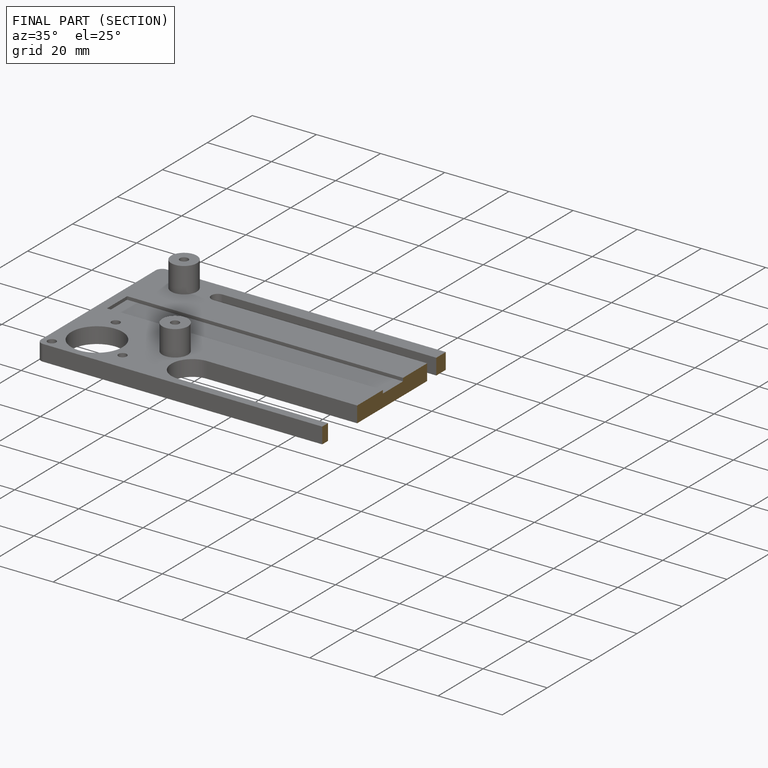
[diagram: finished part — half-section view (interior)]
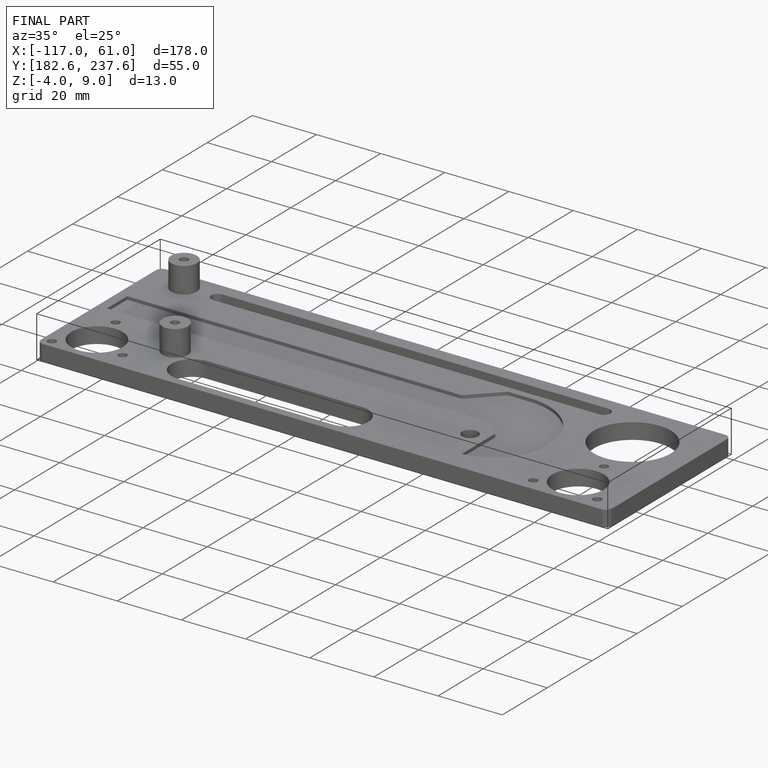
[diagram: finished part — iso view with bounding-box wireframe]
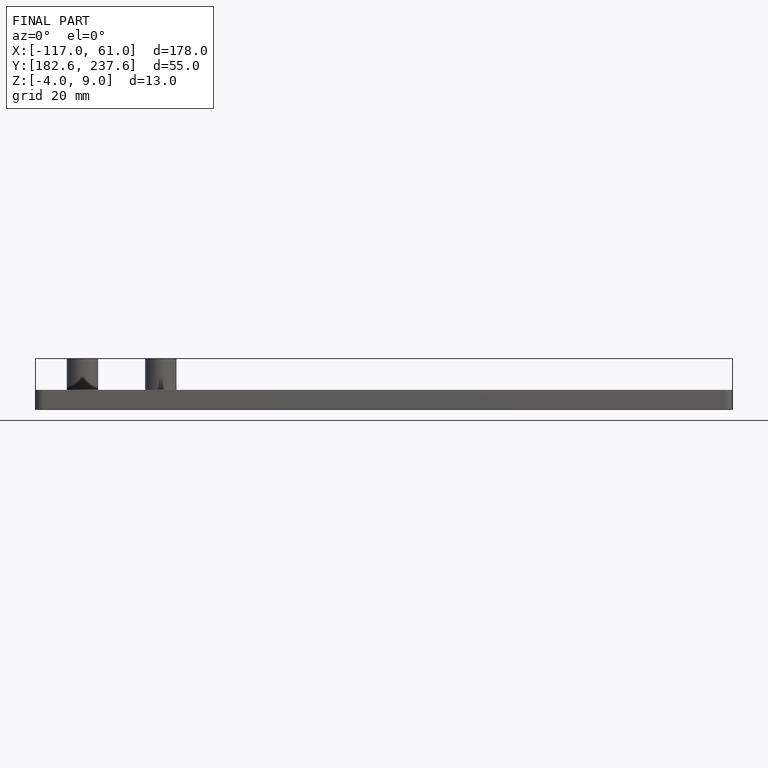
[diagram: finished part — front view with bounding-box wireframe]
